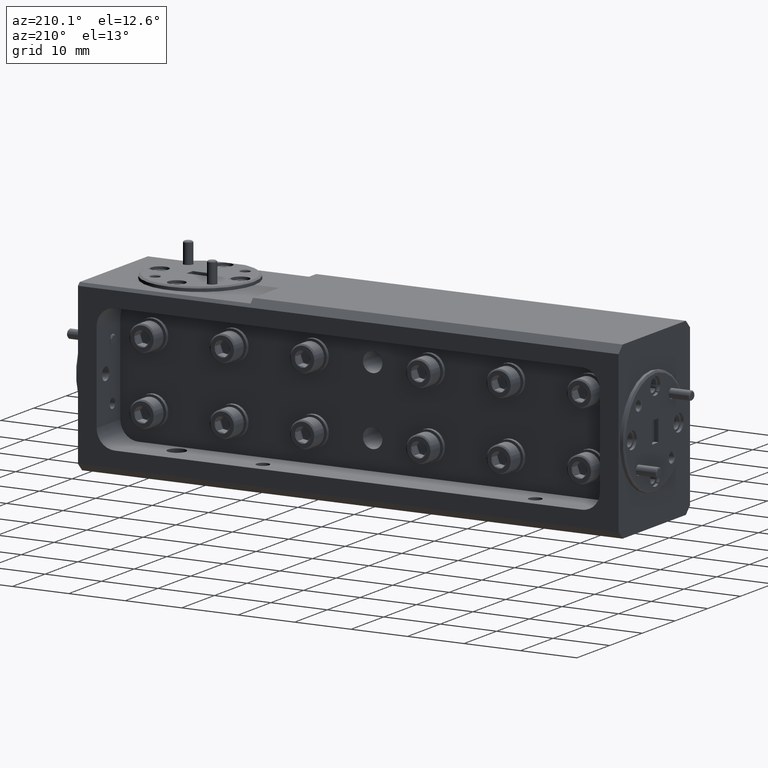
[diagram: clean part render]
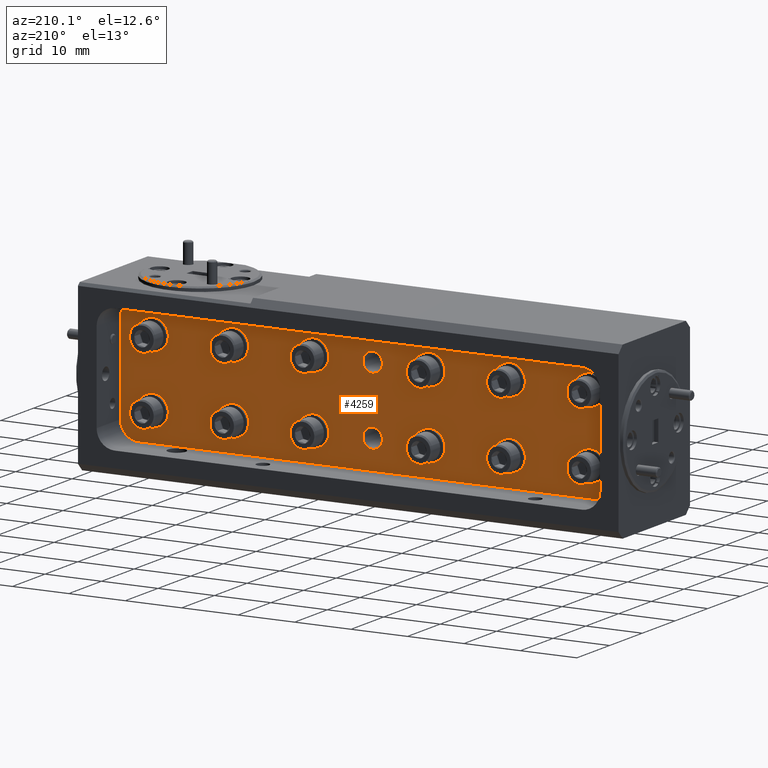
[diagram: same view with one face highlighted and labeled with its STEP entity id]
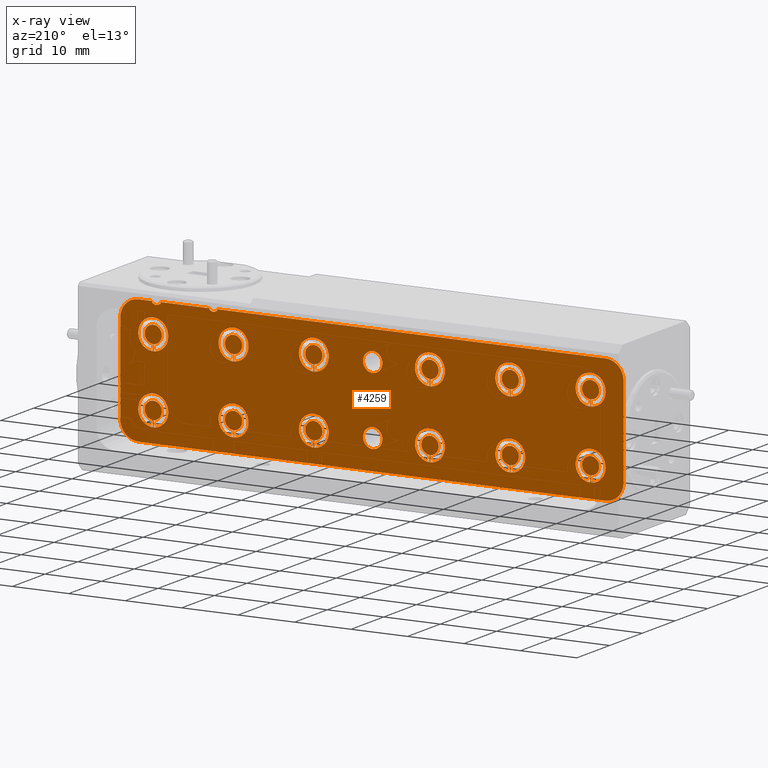
[diagram: x-ray of the same camera — body ghosted, the highlighted face saturated]
A machine part, auxiliary view. The second image highlights one B-rep face of the part: STEP entity #4259.
The next image is the same camera in x-ray: the body ghosted, the highlighted face saturated — about 0% of this face is hidden behind the body in this view.
In plain terms, the highlighted planar face has unit normal (0, -1, 0).
Its self-contained STEP definition (entity closure, byte-faithful):
#14 = CARTESIAN_POINT ( 'NONE',  ( 1.084205943633001601, 0.5750000000000000666, 0.4278289237210025631 ) ) ;
#101 = CARTESIAN_POINT ( 'NONE',  ( -0.9675000000000013589, 0.5750000000000000666, 0.1750521059585911088 ) ) ;
#147 = AXIS2_PLACEMENT_3D ( 'NONE', #12062, #19339, #18118 ) ;
#191 = EDGE_CURVE ( 'NONE', #8511, #4388, #18430, .T. ) ;
#192 = DIRECTION ( 'NONE',  ( 1.185109577205051910E-17, -0.0000000000000000000, 1.000000000000000000 ) ) ;
#209 = DIRECTION ( 'NONE',  ( 0.0000000000000000000, 0.0000000000000000000, 1.000000000000000000 ) ) ;
#244 = CIRCLE ( 'NONE', #13794, 0.06000000000000001166 ) ;
#272 = CARTESIAN_POINT ( 'NONE',  ( -0.9675000000000013589, 0.5750000000000000666, -0.2949478940414088091 ) ) ;
#323 = AXIS2_PLACEMENT_3D ( 'NONE', #12440, #10530, #19728 ) ;
#330 = VERTEX_POINT ( 'NONE', #2055 ) ;
#335 = CARTESIAN_POINT ( 'NONE',  ( 1.755000000000000782, 0.5750000000000000666, 0.3150000000000001132 ) ) ;
#362 = CARTESIAN_POINT ( 'NONE',  ( 0.9650000000000001910, 0.5750000000000000666, 0.2349999999999995426 ) ) ;
#414 = DIRECTION ( 'NONE',  ( 0.0000000000000000000, 0.0000000000000000000, -1.000000000000000000 ) ) ;
#421 = ORIENTED_EDGE ( 'NONE', *, *, #12848, .F. ) ;
#432 = DIRECTION ( 'NONE',  ( 0.0000000000000000000, 0.0000000000000000000, -1.000000000000000000 ) ) ;
#552 = CARTESIAN_POINT ( 'NONE',  ( -1.522500000000000853, 0.5750000000000000666, 0.1750521059585911088 ) ) ;
#560 = ORIENTED_EDGE ( 'NONE', *, *, #19715, .F. ) ;
#621 = EDGE_LOOP ( 'NONE', ( #3382, #1320, #560, #11404 ) ) ;
#706 = EDGE_CURVE ( 'NONE', #18896, #14304, #9422, .T. ) ;
#771 = LINE ( 'NONE', #3791, #17187 ) ;
#794 = VERTEX_POINT ( 'NONE', #13248 ) ;
#795 = LINE ( 'NONE', #13127, #19301 ) ;
#815 = EDGE_CURVE ( 'NONE', #3179, #13420, #16262, .T. ) ;
#821 = CARTESIAN_POINT ( 'NONE',  ( 1.490757015573860755, 0.5749999999999998446, 0.4215190221426816652 ) ) ;
#843 = VECTOR ( 'NONE', #3841, 39.37007874015748143 ) ;
#920 = CIRCLE ( 'NONE', #7376, 0.06000000000000001166 ) ;
#953 = DIRECTION ( 'NONE',  ( 0.0000000000000000000, 0.0000000000000000000, -1.000000000000000000 ) ) ;
#955 = EDGE_LOOP ( 'NONE', ( #1887, #7278, #8452, #4534 ) ) ;
#959 = ORIENTED_EDGE ( 'NONE', *, *, #13530, .F. ) ;
#998 = AXIS2_PLACEMENT_3D ( 'NONE', #3976, #18124, #953 ) ;
#1072 = EDGE_CURVE ( 'NONE', #19501, #1332, #9903, .T. ) ;
#1084 = EDGE_CURVE ( 'NONE', #5321, #19871, #244, .T. ) ;
#1098 = CARTESIAN_POINT ( 'NONE',  ( -0.9675000000000013589, 0.5750000000000000666, -0.2949478940414088091 ) ) ;
#1122 = CARTESIAN_POINT ( 'NONE',  ( 1.514679021007688808, 0.5750000000000000666, 0.4204882571146250081 ) ) ;
#1137 = VERTEX_POINT ( 'NONE', #10361 ) ;
#1221 = CARTESIAN_POINT ( 'NONE',  ( -1.525000000000000799, 0.5750000000000000666, 0.2350000000000000977 ) ) ;
#1298 = DIRECTION ( 'NONE',  ( -0.0000000000000000000, 1.000000000000000000, -0.0000000000000000000 ) ) ;
#1301 = CIRCLE ( 'NONE', #15815, 0.1049999999999999961 ) ;
#1311 = CARTESIAN_POINT ( 'NONE',  ( 0.4025000000000004130, 0.5750000000000000666, 0.1300297661239147307 ) ) ;
#1320 = ORIENTED_EDGE ( 'NONE', *, *, #191, .F. ) ;
#1328 = DIRECTION ( 'NONE',  ( 0.0000000000000000000, 0.0000000000000000000, -1.000000000000000000 ) ) ;
#1332 = VERTEX_POINT ( 'NONE', #7308 ) ;
#1378 = DIRECTION ( 'NONE',  ( -0.0000000000000000000, -1.000000000000000000, -0.0000000000000000000 ) ) ;
#1401 = ORIENTED_EDGE ( 'NONE', *, *, #13221, .F. ) ;
#1420 = DIRECTION ( 'NONE',  ( 1.185109577205051910E-17, 0.0000000000000000000, -1.000000000000000000 ) ) ;
#1427 = CARTESIAN_POINT ( 'NONE',  ( 0.4075000000000004174, 0.5750000000000000666, 0.1750521059585908312 ) ) ;
#1490 = LINE ( 'NONE', #13826, #16978 ) ;
#1546 = CARTESIAN_POINT ( 'NONE',  ( 0.9650000000000001910, 0.5750000000000000666, 0.2349999999999995426 ) ) ;
#1588 = VERTEX_POINT ( 'NONE', #17492 ) ;
#1605 = DIRECTION ( 'NONE',  ( -1.000000000000000000, 0.0000000000000000000, 0.0000000000000000000 ) ) ;
#1630 = CARTESIAN_POINT ( 'NONE',  ( 0.9625000000000001332, 0.5750000000000000666, -0.2949478940414088091 ) ) ;
#1636 = AXIS2_PLACEMENT_3D ( 'NONE', #12692, #11165, #11263 ) ;
#1719 = AXIS2_PLACEMENT_3D ( 'NONE', #18992, #4953, #414 ) ;
#1728 = LINE ( 'NONE', #3138, #19794 ) ;
#1796 = ORIENTED_EDGE ( 'NONE', *, *, #2665, .F. ) ;
#1809 = CARTESIAN_POINT ( 'NONE',  ( -1.525000000000000799, 0.5750000000000000666, -0.2349999999999997369 ) ) ;
#1821 = EDGE_CURVE ( 'NONE', #15996, #18572, #12834, .T. ) ;
#1847 = DIRECTION ( 'NONE',  ( 0.0000000000000000000, 1.000000000000000000, -0.0000000000000000000 ) ) ;
#1887 = ORIENTED_EDGE ( 'NONE', *, *, #15954, .F. ) ;
#1896 = EDGE_CURVE ( 'NONE', #13856, #2424, #13558, .T. ) ;
#1918 = CARTESIAN_POINT ( 'NONE',  ( 1.123955450839486447, 0.5750000000000000666, 0.4257567413884248420 ) ) ;
#1957 = EDGE_CURVE ( 'NONE', #2984, #18756, #12267, .T. ) ;
#2020 = VECTOR ( 'NONE', #16645, 39.37007874015748143 ) ;
#2055 = CARTESIAN_POINT ( 'NONE',  ( 1.522499999999999742, 0.5750000000000000666, -0.2949478940414088091 ) ) ;
#2126 = ORIENTED_EDGE ( 'NONE', *, *, #19268, .F. ) ;
#2246 = CARTESIAN_POINT ( 'NONE',  ( -0.4075000000000018607, 0.5750000000000000666, 0.1300297661239148694 ) ) ;
#2341 = CARTESIAN_POINT ( 'NONE',  ( 1.478420014538937455, 0.5750000000000002887, 0.4273916705232522206 ) ) ;
#2349 = LINE ( 'NONE', #8509, #4357 ) ;
#2355 = ORIENTED_EDGE ( 'NONE', *, *, #18395, .F. ) ;
#2377 = VERTEX_POINT ( 'NONE', #4988 ) ;
#2384 = DIRECTION ( 'NONE',  ( 1.185109577205051910E-17, 0.0000000000000000000, -1.000000000000000000 ) ) ;
#2424 = VERTEX_POINT ( 'NONE', #8032 ) ;
#2426 = EDGE_CURVE ( 'NONE', #10172, #15511, #3665, .T. ) ;
#2472 = AXIS2_PLACEMENT_3D ( 'NONE', #11140, #10846, #3064 ) ;
#2486 = LINE ( 'NONE', #16319, #6932 ) ;
#2488 = DIRECTION ( 'NONE',  ( -0.0000000000000000000, 1.000000000000000000, -0.0000000000000000000 ) ) ;
#2514 = AXIS2_PLACEMENT_3D ( 'NONE', #1546, #3058, #6192 ) ;
#2534 = CARTESIAN_POINT ( 'NONE',  ( 0.4075000000000004174, 0.5750000000000000666, -0.3399702338760849374 ) ) ;
#2541 = CARTESIAN_POINT ( 'NONE',  ( 1.529371237569454145, 0.5750000000000001776, 0.4274153816091309510 ) ) ;
#2566 = EDGE_CURVE ( 'NONE', #5945, #16008, #16299, .T. ) ;
#2574 = EDGE_CURVE ( 'NONE', #10900, #3724, #3166, .T. ) ;
#2665 = EDGE_CURVE ( 'NONE', #1588, #18896, #7724, .T. ) ;
#2728 = DIRECTION ( 'NONE',  ( 1.185109577205051910E-17, -0.0000000000000000000, 1.000000000000000000 ) ) ;
#2740 = FACE_BOUND ( 'NONE', #19853, .T. ) ;
#2757 = DIRECTION ( 'NONE',  ( 1.185109577205051910E-17, 0.0000000000000000000, -1.000000000000000000 ) ) ;
#2773 = DIRECTION ( 'NONE',  ( 1.185109577205051910E-17, -0.0000000000000000000, 1.000000000000000000 ) ) ;
#2861 = VERTEX_POINT ( 'NONE', #15877 ) ;
#2917 = CARTESIAN_POINT ( 'NONE',  ( 1.522499999999999742, 0.5750000000000000666, 0.1750521059585905537 ) ) ;
#2919 = VECTOR ( 'NONE', #10570, 39.37007874015748143 ) ;
#2921 = DIRECTION ( 'NONE',  ( 1.185109577205051910E-17, 0.0000000000000000000, -1.000000000000000000 ) ) ;
#2941 = CARTESIAN_POINT ( 'NONE',  ( 0.9625000000000001332, 0.5750000000000000666, 0.1750521059585905537 ) ) ;
#2965 = DIRECTION ( 'NONE',  ( 1.185109577205051910E-17, 0.0000000000000000000, -1.000000000000000000 ) ) ;
#2980 = CARTESIAN_POINT ( 'NONE',  ( 0.4075000000000004174, 0.5750000000000000666, 0.1750521059585908312 ) ) ;
#2984 = VERTEX_POINT ( 'NONE', #11733 ) ;
#2987 = EDGE_CURVE ( 'NONE', #15157, #13856, #16515, .T. ) ;
#3002 = AXIS2_PLACEMENT_3D ( 'NONE', #19464, #2488, #14811 ) ;
#3030 = CARTESIAN_POINT ( 'NONE',  ( 1.115379827638581345, 0.5750000000000001776, 0.4222234056381671818 ) ) ;
#3043 = VERTEX_POINT ( 'NONE', #16671 ) ;
#3058 = DIRECTION ( 'NONE',  ( 0.0000000000000000000, 1.000000000000000000, -0.0000000000000000000 ) ) ;
#3064 = DIRECTION ( 'NONE',  ( 0.0000000000000000000, 0.0000000000000000000, -1.000000000000000000 ) ) ;
#3138 = CARTESIAN_POINT ( 'NONE',  ( -0.9625000000000012434, 0.5750000000000000666, -0.2949478940414088091 ) ) ;
#3144 = FACE_BOUND ( 'NONE', #14307, .T. ) ;
#3146 = ORIENTED_EDGE ( 'NONE', *, *, #19972, .F. ) ;
#3166 = CIRCLE ( 'NONE', #4487, 0.06000000000000001166 ) ;
#3177 = VERTEX_POINT ( 'NONE', #14255 ) ;
#3179 = VERTEX_POINT ( 'NONE', #11314 ) ;
#3222 = VECTOR ( 'NONE', #10867, 39.37007874015748143 ) ;
#3233 = AXIS2_PLACEMENT_3D ( 'NONE', #12105, #1298, #10493 ) ;
#3243 = CIRCLE ( 'NONE', #14864, 0.06799999999999972733 ) ;
#3382 = ORIENTED_EDGE ( 'NONE', *, *, #6871, .F. ) ;
#3389 = VERTEX_POINT ( 'NONE', #1098 ) ;
#3403 = DIRECTION ( 'NONE',  ( 0.0000000000000000000, 1.000000000000000000, -0.0000000000000000000 ) ) ;
#3416 = DIRECTION ( 'NONE',  ( 0.0000000000000000000, 0.0000000000000000000, 1.000000000000000000 ) ) ;
#3446 = EDGE_CURVE ( 'NONE', #5669, #18464, #795, .T. ) ;
#3459 = VECTOR ( 'NONE', #10896, 39.37007874015748143 ) ;
#3482 = VECTOR ( 'NONE', #9318, 39.37007874015748143 ) ;
#3580 = EDGE_CURVE ( 'NONE', #8248, #15618, #11542, .T. ) ;
#3636 = EDGE_CURVE ( 'NONE', #18756, #19501, #13939, .T. ) ;
#3665 = LINE ( 'NONE', #12684, #17388 ) ;
#3708 = EDGE_CURVE ( 'NONE', #15371, #10172, #8051, .T. ) ;
#3724 = VERTEX_POINT ( 'NONE', #101 ) ;
#3770 = CARTESIAN_POINT ( 'NONE',  ( 0.4025000000000004685, 0.5750000000000000666, -0.2949478940414088091 ) ) ;
#3791 = CARTESIAN_POINT ( 'NONE',  ( -1.527500000000000746, 0.5750000000000000666, -0.2949478940414086980 ) ) ;
#3804 = ORIENTED_EDGE ( 'NONE', *, *, #18250, .F. ) ;
#3841 = DIRECTION ( 'NONE',  ( 1.185109577205051910E-17, 0.0000000000000000000, -1.000000000000000000 ) ) ;
#3883 = VECTOR ( 'NONE', #2921, 39.37007874015748143 ) ;
#3932 = ORIENTED_EDGE ( 'NONE', *, *, #18793, .F. ) ;
#3940 = DIRECTION ( 'NONE',  ( 0.0000000000000000000, 0.0000000000000000000, -1.000000000000000000 ) ) ;
#3942 = ORIENTED_EDGE ( 'NONE', *, *, #1957, .F. ) ;
#3952 = FACE_BOUND ( 'NONE', #13085, .T. ) ;
#3957 = CIRCLE ( 'NONE', #3002, 0.06799999999999972733 ) ;
#3976 = CARTESIAN_POINT ( 'NONE',  ( -1.630000000000000338, 0.5750000000000000666, 0.3150000000000001688 ) ) ;
#3994 = CARTESIAN_POINT ( 'NONE',  ( -1.527500000000000746, 0.5750000000000000666, -0.3399702338760847709 ) ) ;
#4068 = CIRCLE ( 'NONE', #9559, 0.1049999999999999684 ) ;
#4135 = ORIENTED_EDGE ( 'NONE', *, *, #815, .F. ) ;
#4167 = LINE ( 'NONE', #16591, #4240 ) ;
#4168 = DIRECTION ( 'NONE',  ( -0.0000000000000000000, -1.000000000000000000, -0.0000000000000000000 ) ) ;
#4199 = CIRCLE ( 'NONE', #13258, 0.1049999999999999684 ) ;
#4202 = VERTEX_POINT ( 'NONE', #13159 ) ;
#4240 = VECTOR ( 'NONE', #2757, 39.37007874015748143 ) ;
#4259 = ADVANCED_FACE ( 'NONE', ( #14972, #7290, #19320, #5466, #7088, #8698, #17795, #14873, #19427, #2740, #7193, #3952, #16278, #13967, #3144 ), #13862, .F. ) ;
#4282 = CARTESIAN_POINT ( 'NONE',  ( -0.4025000000000018563, 0.5750000000000000666, -0.2949478940414088091 ) ) ;
#4298 = LINE ( 'NONE', #15215, #2919 ) ;
#4302 = DIRECTION ( 'NONE',  ( 1.185109577205051910E-17, -0.0000000000000000000, 1.000000000000000000 ) ) ;
#4336 = VERTEX_POINT ( 'NONE', #1630 ) ;
#4342 = ORIENTED_EDGE ( 'NONE', *, *, #1896, .T. ) ;
#4357 = VECTOR ( 'NONE', #12760, 39.37007874015748143 ) ;
#4388 = VERTEX_POINT ( 'NONE', #1427 ) ;
#4423 = CARTESIAN_POINT ( 'NONE',  ( 0.4025000000000004685, 0.5750000000000000666, -0.2949478940414088091 ) ) ;
#4458 = CARTESIAN_POINT ( 'NONE',  ( -0.9625000000000012434, 0.5750000000000000666, 0.1750521059585911088 ) ) ;
#4487 = AXIS2_PLACEMENT_3D ( 'NONE', #5691, #11861, #19338 ) ;
#4534 = ORIENTED_EDGE ( 'NONE', *, *, #18090, .F. ) ;
#4545 = DIRECTION ( 'NONE',  ( 0.0000000000000000000, 1.000000000000000000, -0.0000000000000000000 ) ) ;
#4643 = CIRCLE ( 'NONE', #147, 0.06000000000000001166 ) ;
#4692 = DIRECTION ( 'NONE',  ( 0.0000000000000000000, 0.0000000000000000000, -1.000000000000000000 ) ) ;
#4703 = CARTESIAN_POINT ( 'NONE',  ( 0.9675000000000002487, 0.5750000000000000666, -0.2949478940414088091 ) ) ;
#4713 = ORIENTED_EDGE ( 'NONE', *, *, #18098, .F. ) ;
#4716 = AXIS2_PLACEMENT_3D ( 'NONE', #12189, #18344, #7642 ) ;
#4730 = DIRECTION ( 'NONE',  ( -0.0000000000000000000, -1.000000000000000000, -0.0000000000000000000 ) ) ;
#4743 = CARTESIAN_POINT ( 'NONE',  ( 1.080079012854546328, 0.5750000000000000666, 0.4299999999999999378 ) ) ;
#4780 = EDGE_CURVE ( 'NONE', #330, #11974, #10505, .T. ) ;
#4793 = CARTESIAN_POINT ( 'NONE',  ( -1.522500000000000853, 0.5750000000000000666, -0.2949478940414086980 ) ) ;
#4822 = CARTESIAN_POINT ( 'NONE',  ( 0.9675000000000002487, 0.5750000000000000666, 0.1300297661239144531 ) ) ;
#4844 = CARTESIAN_POINT ( 'NONE',  ( -0.4050000000000018030, 0.5750000000000000666, -0.2349999999999998201 ) ) ;
#4845 = CARTESIAN_POINT ( 'NONE',  ( 1.101503696203415261, 0.5750000000000001776, 0.4207479686335486302 ) ) ;
#4857 = CIRCLE ( 'NONE', #18066, 0.1250000000000000278 ) ;
#4933 = LINE ( 'NONE', #12412, #3459 ) ;
#4953 = DIRECTION ( 'NONE',  ( 0.0000000000000000000, 1.000000000000000000, -0.0000000000000000000 ) ) ;
#4988 = CARTESIAN_POINT ( 'NONE',  ( 1.080079012854546328, 0.5750000000000000666, 0.4299999999999999378 ) ) ;
#5039 = CARTESIAN_POINT ( 'NONE',  ( 0.4025000000000004685, 0.5750000000000000666, 0.1750521059585908312 ) ) ;
#5068 = DIRECTION ( 'NONE',  ( 0.0000000000000000000, 0.0000000000000000000, -1.000000000000000000 ) ) ;
#5101 = ORIENTED_EDGE ( 'NONE', *, *, #16370, .F. ) ;
#5213 = ORIENTED_EDGE ( 'NONE', *, *, #12200, .T. ) ;
#5277 = AXIS2_PLACEMENT_3D ( 'NONE', #16526, #1378, #13704 ) ;
#5286 = CARTESIAN_POINT ( 'NONE',  ( 1.522499999999999742, 0.5750000000000000666, -0.3399702338760849374 ) ) ;
#5305 = CARTESIAN_POINT ( 'NONE',  ( -0.4075000000000018607, 0.5750000000000000666, -0.3399702338760849374 ) ) ;
#5321 = VERTEX_POINT ( 'NONE', #4793 ) ;
#5351 = EDGE_CURVE ( 'NONE', #19028, #2861, #19371, .T. ) ;
#5353 = CIRCLE ( 'NONE', #6965, 0.06000000000000001166 ) ;
#5378 = CARTESIAN_POINT ( 'NONE',  ( 0.4050000000000004707, 0.5750000000000000666, 0.2349999999999998201 ) ) ;
#5466 = FACE_BOUND ( 'NONE', #621, .T. ) ;
#5499 = EDGE_CURVE ( 'NONE', #5581, #10720, #1301, .T. ) ;
#5581 = VERTEX_POINT ( 'NONE', #7488 ) ;
#5631 = LINE ( 'NONE', #4423, #2020 ) ;
#5657 = LINE ( 'NONE', #2941, #19739 ) ;
#5669 = VERTEX_POINT ( 'NONE', #2534 ) ;
#5682 = ORIENTED_EDGE ( 'NONE', *, *, #8253, .T. ) ;
#5691 = CARTESIAN_POINT ( 'NONE',  ( -0.9650000000000013012, 0.5750000000000000666, 0.2350000000000000977 ) ) ;
#5777 = EDGE_CURVE ( 'NONE', #2377, #15592, #11893, .T. ) ;
#5862 = VERTEX_POINT ( 'NONE', #8562 ) ;
#5945 = VERTEX_POINT ( 'NONE', #5039 ) ;
#5985 = CARTESIAN_POINT ( 'NONE',  ( -0.4075000000000018052, 0.5750000000000000666, 0.1750521059585909700 ) ) ;
#6016 = ORIENTED_EDGE ( 'NONE', *, *, #3446, .F. ) ;
#6047 = EDGE_CURVE ( 'NONE', #15592, #6612, #8969, .T. ) ;
#6064 = CARTESIAN_POINT ( 'NONE',  ( 1.534133398614354382, 0.5750000000000000666, 0.5999999999999998668 ) ) ;
#6075 = CARTESIAN_POINT ( 'NONE',  ( 1.522499999999999742, 0.5750000000000000666, 0.1750521059585905537 ) ) ;
#6094 = DIRECTION ( 'NONE',  ( 0.0000000000000000000, 0.0000000000000000000, -1.000000000000000000 ) ) ;
#6168 = VERTEX_POINT ( 'NONE', #10988 ) ;
#6180 = EDGE_CURVE ( 'NONE', #10051, #15157, #1490, .T. ) ;
#6192 = DIRECTION ( 'NONE',  ( 0.0000000000000000000, 0.0000000000000000000, -1.000000000000000000 ) ) ;
#6346 = CARTESIAN_POINT ( 'NONE',  ( 1.755000000000000782, 0.5750000000000000666, 0.4400000000000001688 ) ) ;
#6369 = CIRCLE ( 'NONE', #9587, 0.06000000000000001166 ) ;
#6379 = LINE ( 'NONE', #7705, #3482 ) ;
#6434 = DIRECTION ( 'NONE',  ( -1.000000000000000000, 0.0000000000000000000, 0.0000000000000000000 ) ) ;
#6455 = AXIS2_PLACEMENT_3D ( 'NONE', #13610, #17117, #4692 ) ;
#6457 = CARTESIAN_POINT ( 'NONE',  ( 1.096991888692361528, 0.5750000000000000666, 0.4221809936533471030 ) ) ;
#6612 = VERTEX_POINT ( 'NONE', #16822 ) ;
#6682 = DIRECTION ( 'NONE',  ( -1.000000000000000000, 0.0000000000000000000, 0.0000000000000000000 ) ) ;
#6760 = DIRECTION ( 'NONE',  ( -0.0000000000000000000, 1.000000000000000000, -0.0000000000000000000 ) ) ;
#6845 = VERTEX_POINT ( 'NONE', #14895 ) ;
#6871 = EDGE_CURVE ( 'NONE', #4388, #5945, #6369, .T. ) ;
#6879 = CARTESIAN_POINT ( 'NONE',  ( -1.527500000000000746, 0.5750000000000000666, 0.1750521059585911088 ) ) ;
#6930 = CIRCLE ( 'NONE', #4716, 0.06000000000000001166 ) ;
#6932 = VECTOR ( 'NONE', #12182, 39.37007874015748143 ) ;
#6965 = AXIS2_PLACEMENT_3D ( 'NONE', #9085, #4730, #18474 ) ;
#6987 = CARTESIAN_POINT ( 'NONE',  ( -1.522500000000000853, 0.5750000000000000666, -0.3399702338760847709 ) ) ;
#7052 = ORIENTED_EDGE ( 'NONE', *, *, #706, .F. ) ;
#7088 = FACE_BOUND ( 'NONE', #16385, .T. ) ;
#7089 = CARTESIAN_POINT ( 'NONE',  ( -0.4025000000000018563, 0.5750000000000000666, 0.1750521059585909700 ) ) ;
#7162 = CARTESIAN_POINT ( 'NONE',  ( -0.4025000000000018563, 0.5750000000000000666, 0.1300297661239148694 ) ) ;
#7185 = CARTESIAN_POINT ( 'NONE',  ( 0.4075000000000004174, 0.5750000000000000666, -0.2949478940414088091 ) ) ;
#7193 = FACE_BOUND ( 'NONE', #955, .T. ) ;
#7204 = VERTEX_POINT ( 'NONE', #13358 ) ;
#7278 = ORIENTED_EDGE ( 'NONE', *, *, #2426, .F. ) ;
#7285 = CARTESIAN_POINT ( 'NONE',  ( 1.534133398614354382, 0.5750000000000000666, 0.4299999999999997713 ) ) ;
#7290 = FACE_BOUND ( 'NONE', #8784, .T. ) ;
#7291 = CARTESIAN_POINT ( 'NONE',  ( 1.630000000000001004, 0.5750000000000000666, 0.4400000000000001688 ) ) ;
#7308 = CARTESIAN_POINT ( 'NONE',  ( -1.527500000000000746, 0.5750000000000000666, 0.1750521059585911088 ) ) ;
#7344 = VERTEX_POINT ( 'NONE', #18466 ) ;
#7366 = DIRECTION ( 'NONE',  ( -0.0000000000000000000, -1.000000000000000000, -0.0000000000000000000 ) ) ;
#7376 = AXIS2_PLACEMENT_3D ( 'NONE', #4844, #15560, #209 ) ;
#7409 = DIRECTION ( 'NONE',  ( -0.0000000000000000000, -1.000000000000000000, -0.0000000000000000000 ) ) ;
#7421 = CARTESIAN_POINT ( 'NONE',  ( 1.080079012854546328, 0.5750000000000000666, 0.5999999999999998668 ) ) ;
#7488 = CARTESIAN_POINT ( 'NONE',  ( 1.522499999999999742, 0.5750000000000000666, 0.1300297661239144531 ) ) ;
#7642 = DIRECTION ( 'NONE',  ( 0.0000000000000000000, 0.0000000000000000000, 1.000000000000000000 ) ) ;
#7689 = CARTESIAN_POINT ( 'NONE',  ( -0.9650000000000013012, 0.5750000000000000666, 0.2350000000000000977 ) ) ;
#7691 = DIRECTION ( 'NONE',  ( 0.0000000000000000000, 0.0000000000000000000, -1.000000000000000000 ) ) ;
#7705 = CARTESIAN_POINT ( 'NONE',  ( 1.527499999999999858, 0.5750000000000000666, -0.2949478940414088091 ) ) ;
#7715 = CARTESIAN_POINT ( 'NONE',  ( 1.527499999999999858, 0.5750000000000000666, 0.1750521059585905537 ) ) ;
#7724 = CIRCLE ( 'NONE', #2514, 0.1049999999999999961 ) ;
#7749 = ORIENTED_EDGE ( 'NONE', *, *, #19735, .F. ) ;
#7803 = VECTOR ( 'NONE', #2965, 39.37007874015748143 ) ;
#7805 = CARTESIAN_POINT ( 'NONE',  ( 1.132173422728021128, 0.5750000000000000666, 0.4299999999999999378 ) ) ;
#7855 = VERTEX_POINT ( 'NONE', #3770 ) ;
#7866 = EDGE_LOOP ( 'NONE', ( #14799, #2126 ) ) ;
#7912 = EDGE_CURVE ( 'NONE', #14304, #3177, #16490, .T. ) ;
#8012 = DIRECTION ( 'NONE',  ( -0.0000000000000000000, 1.000000000000000000, -0.0000000000000000000 ) ) ;
#8032 = CARTESIAN_POINT ( 'NONE',  ( 1.534133398614354382, 0.5750000000000000666, 0.4400000000000001688 ) ) ;
#8034 = VERTEX_POINT ( 'NONE', #4282 ) ;
#8051 = CIRCLE ( 'NONE', #14236, 0.1049999999999999961 ) ;
#8085 = CARTESIAN_POINT ( 'NONE',  ( 0.4050000000000004707, 0.5750000000000000666, -0.2349999999999998201 ) ) ;
#8101 = DIRECTION ( 'NONE',  ( 1.185109577205051910E-17, -0.0000000000000000000, 1.000000000000000000 ) ) ;
#8115 = CARTESIAN_POINT ( 'NONE',  ( -0.4050000000000018030, 0.5750000000000000666, -0.2349999999999998201 ) ) ;
#8164 = CARTESIAN_POINT ( 'NONE',  ( -0.4050000000000018030, 0.5750000000000000666, 0.2349999999999999589 ) ) ;
#8248 = VERTEX_POINT ( 'NONE', #7715 ) ;
#8253 = EDGE_CURVE ( 'NONE', #16745, #7344, #4857, .T. ) ;
#8269 = EDGE_CURVE ( 'NONE', #10434, #4202, #4199, .T. ) ;
#8281 = CARTESIAN_POINT ( 'NONE',  ( -1.527500000000000746, 0.5750000000000000666, -0.2949478940414086980 ) ) ;
#8296 = VERTEX_POINT ( 'NONE', #335 ) ;
#8318 = EDGE_CURVE ( 'NONE', #17029, #1137, #3243, .T. ) ;
#8319 = EDGE_LOOP ( 'NONE', ( #12448, #6016, #8363, #3932 ) ) ;
#8363 = ORIENTED_EDGE ( 'NONE', *, *, #9889, .F. ) ;
#8395 = EDGE_CURVE ( 'NONE', #10051, #6612, #8404, .T. ) ;
#8404 = LINE ( 'NONE', #14369, #11320 ) ;
#8422 = VECTOR ( 'NONE', #15133, 39.37007874015748143 ) ;
#8452 = ORIENTED_EDGE ( 'NONE', *, *, #3708, .F. ) ;
#8474 = ORIENTED_EDGE ( 'NONE', *, *, #3580, .F. ) ;
#8509 = CARTESIAN_POINT ( 'NONE',  ( 0.9625000000000001332, 0.5750000000000000666, -0.2949478940414088091 ) ) ;
#8511 = VERTEX_POINT ( 'NONE', #10217 ) ;
#8562 = CARTESIAN_POINT ( 'NONE',  ( -0.9625000000000012434, 0.5750000000000000666, -0.2949478940414088091 ) ) ;
#8582 = VECTOR ( 'NONE', #6094, 39.37007874015748143 ) ;
#8586 = DIRECTION ( 'NONE',  ( -0.0000000000000000000, -0.0000000000000000000, -1.000000000000000000 ) ) ;
#8597 = CARTESIAN_POINT ( 'NONE',  ( 1.524582661297355646, 0.5750000000000002887, 0.4248845874221288121 ) ) ;
#8645 = LINE ( 'NONE', #12084, #10748 ) ;
#8656 = LINE ( 'NONE', #7421, #8582 ) ;
#8698 = FACE_BOUND ( 'NONE', #17554, .T. ) ;
#8784 = EDGE_LOOP ( 'NONE', ( #959, #10638, #18002, #12943 ) ) ;
#8799 = CARTESIAN_POINT ( 'NONE',  ( 1.501277279096165262, 0.5750000000000000666, 0.4184938026879925221 ) ) ;
#8852 = VERTEX_POINT ( 'NONE', #13129 ) ;
#8958 = ORIENTED_EDGE ( 'NONE', *, *, #11433, .F. ) ;
#8959 = ORIENTED_EDGE ( 'NONE', *, *, #16236, .T. ) ;
#8967 = VECTOR ( 'NONE', #192, 39.37007874015748143 ) ;
#8969 = LINE ( 'NONE', #15033, #8422 ) ;
#8977 = ORIENTED_EDGE ( 'NONE', *, *, #8269, .F. ) ;
#9044 = CIRCLE ( 'NONE', #3233, 0.1250000000000000278 ) ;
#9083 = AXIS2_PLACEMENT_3D ( 'NONE', #362, #19143, #19240 ) ;
#9085 = CARTESIAN_POINT ( 'NONE',  ( -0.4050000000000018030, 0.5750000000000000666, 0.2349999999999999589 ) ) ;
#9089 = CIRCLE ( 'NONE', #10377, 0.06000000000000001166 ) ;
#9214 = LINE ( 'NONE', #5985, #7803 ) ;
#9217 = DIRECTION ( 'NONE',  ( 0.0000000000000000000, 1.000000000000000000, -0.0000000000000000000 ) ) ;
#9294 = CARTESIAN_POINT ( 'NONE',  ( 1.527499999999999858, 0.5750000000000000666, 0.1750521059585905537 ) ) ;
#9318 = DIRECTION ( 'NONE',  ( 1.185109577205051910E-17, -0.0000000000000000000, 1.000000000000000000 ) ) ;
#9422 = LINE ( 'NONE', #12445, #15077 ) ;
#9429 = CARTESIAN_POINT ( 'NONE',  ( -0.9650000000000013012, 0.5750000000000000666, -0.2349999999999998201 ) ) ;
#9486 = EDGE_CURVE ( 'NONE', #8852, #14601, #4068, .T. ) ;
#9493 = DIRECTION ( 'NONE',  ( 1.185109577205051910E-17, -0.0000000000000000000, 1.000000000000000000 ) ) ;
#9519 = LINE ( 'NONE', #6879, #843 ) ;
#9556 = EDGE_CURVE ( 'NONE', #1332, #2984, #9519, .T. ) ;
#9559 = AXIS2_PLACEMENT_3D ( 'NONE', #9429, #9217, #432 ) ;
#9587 = AXIS2_PLACEMENT_3D ( 'NONE', #5378, #4168, #16398 ) ;
#9675 = ORIENTED_EDGE ( 'NONE', *, *, #7912, .F. ) ;
#9704 = CARTESIAN_POINT ( 'NONE',  ( -0.005000000000000629809, 0.5750000000000002887, -0.2349999999999998757 ) ) ;
#9805 = ORIENTED_EDGE ( 'NONE', *, *, #10700, .F. ) ;
#9813 = DIRECTION ( 'NONE',  ( 0.0000000000000000000, 0.0000000000000000000, -1.000000000000000000 ) ) ;
#9865 = CIRCLE ( 'NONE', #12767, 0.1250000000000000000 ) ;
#9889 = EDGE_CURVE ( 'NONE', #6168, #5669, #15016, .T. ) ;
#9903 = CIRCLE ( 'NONE', #11207, 0.06000000000000001166 ) ;
#9933 = AXIS2_PLACEMENT_3D ( 'NONE', #15040, #7366, #13538 ) ;
#10051 = VERTEX_POINT ( 'NONE', #15855 ) ;
#10172 = VERTEX_POINT ( 'NONE', #7162 ) ;
#10217 = CARTESIAN_POINT ( 'NONE',  ( 0.4075000000000004174, 0.5750000000000000666, 0.1300297661239147307 ) ) ;
#10231 = CIRCLE ( 'NONE', #16688, 0.06799999999999972733 ) ;
#10361 = CARTESIAN_POINT ( 'NONE',  ( -0.005000000000000629809, 0.5750000000000002887, 0.3029999999999996030 ) ) ;
#10377 = AXIS2_PLACEMENT_3D ( 'NONE', #19929, #7409, #18205 ) ;
#10434 = VERTEX_POINT ( 'NONE', #5305 ) ;
#10440 = CARTESIAN_POINT ( 'NONE',  ( 1.755000000000000782, 0.5750000000000000666, -0.3150000000000001688 ) ) ;
#10493 = DIRECTION ( 'NONE',  ( 0.0000000000000000000, 0.0000000000000000000, -1.000000000000000000 ) ) ;
#10505 = LINE ( 'NONE', #16754, #3883 ) ;
#10519 = CARTESIAN_POINT ( 'NONE',  ( -0.4025000000000018563, 0.5750000000000000666, -0.2949478940414088091 ) ) ;
#10522 = DIRECTION ( 'NONE',  ( -0.0000000000000000000, -0.0000000000000000000, 1.000000000000000000 ) ) ;
#10530 = DIRECTION ( 'NONE',  ( 0.0000000000000000000, -1.000000000000000000, 0.0000000000000000000 ) ) ;
#10533 = VERTEX_POINT ( 'NONE', #3994 ) ;
#10570 = DIRECTION ( 'NONE',  ( 0.0000000000000000000, 0.0000000000000000000, 1.000000000000000000 ) ) ;
#10574 = ORIENTED_EDGE ( 'NONE', *, *, #9486, .F. ) ;
#10611 = CIRCLE ( 'NONE', #14164, 0.1049999999999999684 ) ;
#10638 = ORIENTED_EDGE ( 'NONE', *, *, #14894, .F. ) ;
#10700 = EDGE_CURVE ( 'NONE', #5862, #3389, #6930, .T. ) ;
#10718 = DIRECTION ( 'NONE',  ( 0.0000000000000000000, 0.0000000000000000000, -1.000000000000000000 ) ) ;
#10720 = VERTEX_POINT ( 'NONE', #15517 ) ;
#10748 = VECTOR ( 'NONE', #4302, 39.37007874015748143 ) ;
#10785 = LINE ( 'NONE', #18663, #19519 ) ;
#10807 = CARTESIAN_POINT ( 'NONE',  ( 1.132173422728021128, 0.5750000000000000666, 0.4299999999999999378 ) ) ;
#10841 = DIRECTION ( 'NONE',  ( -0.0000000000000000000, 1.000000000000000000, -0.0000000000000000000 ) ) ;
#10846 = DIRECTION ( 'NONE',  ( -0.0000000000000000000, 1.000000000000000000, -0.0000000000000000000 ) ) ;
#10867 = DIRECTION ( 'NONE',  ( 1.185109577205051910E-17, -0.0000000000000000000, 1.000000000000000000 ) ) ;
#10896 = DIRECTION ( 'NONE',  ( 1.185109577205051910E-17, -0.0000000000000000000, 1.000000000000000000 ) ) ;
#10900 = VERTEX_POINT ( 'NONE', #4458 ) ;
#10916 = CARTESIAN_POINT ( 'NONE',  ( -0.9625000000000012434, 0.5750000000000000666, 0.1300297661239150082 ) ) ;
#10926 = VECTOR ( 'NONE', #9493, 39.37007874015748143 ) ;
#10987 = CARTESIAN_POINT ( 'NONE',  ( -0.4075000000000018052, 0.5750000000000000666, -0.2949478940414088091 ) ) ;
#10988 = CARTESIAN_POINT ( 'NONE',  ( 0.4025000000000004130, 0.5750000000000000666, -0.3399702338760849374 ) ) ;
#11027 = DIRECTION ( 'NONE',  ( 1.185109577205051910E-17, -0.0000000000000000000, 1.000000000000000000 ) ) ;
#11054 = EDGE_CURVE ( 'NONE', #18750, #3043, #10231, .T. ) ;
#11140 = CARTESIAN_POINT ( 'NONE',  ( -0.005000000000000629809, 0.5750000000000002887, 0.2349999999999998757 ) ) ;
#11165 = DIRECTION ( 'NONE',  ( 0.0000000000000000000, 1.000000000000000000, -0.0000000000000000000 ) ) ;
#11181 = CIRCLE ( 'NONE', #2472, 0.06799999999999972733 ) ;
#11203 = CARTESIAN_POINT ( 'NONE',  ( -1.525000000000000799, 0.5750000000000000666, 0.2350000000000000977 ) ) ;
#11207 = AXIS2_PLACEMENT_3D ( 'NONE', #11203, #12634, #17257 ) ;
#11263 = DIRECTION ( 'NONE',  ( 0.0000000000000000000, 0.0000000000000000000, -1.000000000000000000 ) ) ;
#11314 = CARTESIAN_POINT ( 'NONE',  ( -1.755000000000000560, 0.5750000000000000666, 0.3150000000000001132 ) ) ;
#11320 = VECTOR ( 'NONE', #6682, 39.37007874015748143 ) ;
#11396 = ORIENTED_EDGE ( 'NONE', *, *, #3636, .F. ) ;
#11404 = ORIENTED_EDGE ( 'NONE', *, *, #2566, .F. ) ;
#11433 = EDGE_CURVE ( 'NONE', #18572, #10900, #4933, .T. ) ;
#11469 = CARTESIAN_POINT ( 'NONE',  ( -1.755000000000000560, 0.5750000000000000666, -0.3150000000000001688 ) ) ;
#11508 = VECTOR ( 'NONE', #13712, 39.37007874015748143 ) ;
#11542 = CIRCLE ( 'NONE', #9933, 0.06000000000000001166 ) ;
#11591 = EDGE_LOOP ( 'NONE', ( #12886, #11700, #421, #5682, #15173, #15278, #4135, #5213, #1401, #8959, #12770, #17976, #14646, #13220, #19249, #4342 ) ) ;
#11636 = CARTESIAN_POINT ( 'NONE',  ( 0.9675000000000002487, 0.5750000000000000666, 0.1750521059585905537 ) ) ;
#11700 = ORIENTED_EDGE ( 'NONE', *, *, #15681, .T. ) ;
#11730 = DIRECTION ( 'NONE',  ( 1.185109577205051910E-17, 0.0000000000000000000, -1.000000000000000000 ) ) ;
#11733 = CARTESIAN_POINT ( 'NONE',  ( -1.527500000000000746, 0.5750000000000000666, 0.1300297661239150082 ) ) ;
#11758 = CARTESIAN_POINT ( 'NONE',  ( 1.534133398614354382, 0.5750000000000000666, 0.4299999999999997713 ) ) ;
#11823 = EDGE_CURVE ( 'NONE', #3389, #8852, #12190, .T. ) ;
#11824 = CARTESIAN_POINT ( 'NONE',  ( 1.527499999999999858, 0.5750000000000000666, -0.2949478940414088091 ) ) ;
#11861 = DIRECTION ( 'NONE',  ( -0.0000000000000000000, -1.000000000000000000, -0.0000000000000000000 ) ) ;
#11866 = AXIS2_PLACEMENT_3D ( 'NONE', #7689, #16870, #18282 ) ;
#11893 = B_SPLINE_CURVE_WITH_KNOTS ( 'NONE', 3,
 ( #4743, #14, #17173, #6457, #4845, #12639, #3030, #1918, #15350, #10807 ),
 .UNSPECIFIED., .F., .F.,
 ( 4, 2, 2, 2, 4 ),
 ( 0.003759186431509194560, 0.004114151791802043122, 0.004469117152094892118, 0.004824082512387741113, 0.005179047872680590109 ),
 .UNSPECIFIED. ) ;
#11974 = VERTEX_POINT ( 'NONE', #5286 ) ;
#11979 = ORIENTED_EDGE ( 'NONE', *, *, #11823, .F. ) ;
#12049 = EDGE_CURVE ( 'NONE', #10533, #15297, #18417, .T. ) ;
#12062 = CARTESIAN_POINT ( 'NONE',  ( 1.524999999999999689, 0.5750000000000000666, -0.2349999999999998201 ) ) ;
#12084 = CARTESIAN_POINT ( 'NONE',  ( -1.522500000000000853, 0.5750000000000000666, -0.2949478940414086980 ) ) ;
#12105 = CARTESIAN_POINT ( 'NONE',  ( -1.630000000000000560, 0.5750000000000000666, -0.3150000000000001688 ) ) ;
#12182 = DIRECTION ( 'NONE',  ( 1.000000000000000000, -0.0000000000000000000, -0.0000000000000000000 ) ) ;
#12189 = CARTESIAN_POINT ( 'NONE',  ( -0.9650000000000013012, 0.5750000000000000666, -0.2349999999999998201 ) ) ;
#12190 = LINE ( 'NONE', #272, #11508 ) ;
#12200 = EDGE_CURVE ( 'NONE', #3179, #17402, #19389, .T. ) ;
#12267 = CIRCLE ( 'NONE', #16460, 0.1049999999999999961 ) ;
#12412 = CARTESIAN_POINT ( 'NONE',  ( -0.9625000000000012434, 0.5750000000000000666, 0.1750521059585911088 ) ) ;
#12440 = CARTESIAN_POINT ( 'NONE',  ( 0.0000000000000000000, 0.5750000000000000666, 0.0000000000000000000 ) ) ;
#12445 = CARTESIAN_POINT ( 'NONE',  ( 0.9675000000000002487, 0.5750000000000000666, 0.1750521059585905537 ) ) ;
#12448 = ORIENTED_EDGE ( 'NONE', *, *, #18123, .F. ) ;
#12536 = LINE ( 'NONE', #9294, #10926 ) ;
#12557 = LINE ( 'NONE', #17192, #13929 ) ;
#12611 = VECTOR ( 'NONE', #10522, 39.37007874015748143 ) ;
#12634 = DIRECTION ( 'NONE',  ( -0.0000000000000000000, -1.000000000000000000, -0.0000000000000000000 ) ) ;
#12639 = CARTESIAN_POINT ( 'NONE',  ( 1.110883018127134747, 0.5750000000000000666, 0.4207742923178038885 ) ) ;
#12662 = EDGE_CURVE ( 'NONE', #15503, #2424, #15447, .T. ) ;
#12670 = CARTESIAN_POINT ( 'NONE',  ( 1.473614165803078357, 0.5750000000000000666, 0.4299999999999997713 ) ) ;
#12684 = CARTESIAN_POINT ( 'NONE',  ( -0.4025000000000018563, 0.5750000000000000666, 0.1750521059585909700 ) ) ;
#12692 = CARTESIAN_POINT ( 'NONE',  ( -1.525000000000000799, 0.5750000000000000666, -0.2349999999999997369 ) ) ;
#12713 = DIRECTION ( 'NONE',  ( 0.0000000000000000000, 0.0000000000000000000, -1.000000000000000000 ) ) ;
#12760 = DIRECTION ( 'NONE',  ( 1.185109577205051910E-17, 0.0000000000000000000, -1.000000000000000000 ) ) ;
#12767 = AXIS2_PLACEMENT_3D ( 'NONE', #13037, #6760, #19190 ) ;
#12770 = ORIENTED_EDGE ( 'NONE', *, *, #5777, .T. ) ;
#12788 = ORIENTED_EDGE ( 'NONE', *, *, #1084, .F. ) ;
#12834 = CIRCLE ( 'NONE', #11866, 0.1049999999999999961 ) ;
#12846 = VECTOR ( 'NONE', #16202, 39.37007874015748143 ) ;
#12848 = EDGE_CURVE ( 'NONE', #16745, #8296, #4298, .T. ) ;
#12886 = ORIENTED_EDGE ( 'NONE', *, *, #12662, .F. ) ;
#12943 = ORIENTED_EDGE ( 'NONE', *, *, #16585, .F. ) ;
#13037 = CARTESIAN_POINT ( 'NONE',  ( 1.630000000000001004, 0.5750000000000000666, 0.3150000000000001132 ) ) ;
#13043 = DIRECTION ( 'NONE',  ( 0.0000000000000000000, 1.000000000000000000, -0.0000000000000000000 ) ) ;
#13083 = EDGE_CURVE ( 'NONE', #6845, #13420, #9044, .T. ) ;
#13085 = EDGE_LOOP ( 'NONE', ( #9675, #7052, #1796, #2355 ) ) ;
#13116 = ORIENTED_EDGE ( 'NONE', *, *, #8318, .F. ) ;
#13127 = CARTESIAN_POINT ( 'NONE',  ( 0.4075000000000004174, 0.5750000000000000666, -0.2949478940414088091 ) ) ;
#13129 = CARTESIAN_POINT ( 'NONE',  ( -0.9675000000000013589, 0.5750000000000000666, -0.3399702338760849374 ) ) ;
#13154 = CARTESIAN_POINT ( 'NONE',  ( 1.473614165803078357, 0.5750000000000000666, 0.4299999999999997713 ) ) ;
#13159 = CARTESIAN_POINT ( 'NONE',  ( -0.4025000000000018563, 0.5750000000000000666, -0.3399702338760849374 ) ) ;
#13193 = ORIENTED_EDGE ( 'NONE', *, *, #16928, .F. ) ;
#13220 = ORIENTED_EDGE ( 'NONE', *, *, #6180, .T. ) ;
#13221 = EDGE_CURVE ( 'NONE', #794, #17402, #10785, .T. ) ;
#13248 = CARTESIAN_POINT ( 'NONE',  ( 1.080079012854546328, 0.5750000000000000666, 0.4400000000000001688 ) ) ;
#13258 = AXIS2_PLACEMENT_3D ( 'NONE', #8115, #1847, #5068 ) ;
#13358 = CARTESIAN_POINT ( 'NONE',  ( -0.4075000000000018052, 0.5750000000000000666, 0.1750521059585909700 ) ) ;
#13420 = VERTEX_POINT ( 'NONE', #11469 ) ;
#13472 = VECTOR ( 'NONE', #8586, 39.37007874015748143 ) ;
#13484 = EDGE_CURVE ( 'NONE', #6845, #7344, #2486, .T. ) ;
#13530 = EDGE_CURVE ( 'NONE', #19367, #4336, #17230, .T. ) ;
#13538 = DIRECTION ( 'NONE',  ( 0.0000000000000000000, 0.0000000000000000000, 1.000000000000000000 ) ) ;
#13558 = LINE ( 'NONE', #6064, #12611 ) ;
#13610 = CARTESIAN_POINT ( 'NONE',  ( 0.9650000000000001910, 0.5750000000000000666, -0.2349999999999998201 ) ) ;
#13682 = VECTOR ( 'NONE', #16554, 39.37007874015748143 ) ;
#13704 = DIRECTION ( 'NONE',  ( 0.0000000000000000000, 0.0000000000000000000, 1.000000000000000000 ) ) ;
#13712 = DIRECTION ( 'NONE',  ( 1.185109577205051910E-17, 0.0000000000000000000, -1.000000000000000000 ) ) ;
#13794 = AXIS2_PLACEMENT_3D ( 'NONE', #1809, #15558, #3416 ) ;
#13819 = ORIENTED_EDGE ( 'NONE', *, *, #17405, .F. ) ;
#13826 = CARTESIAN_POINT ( 'NONE',  ( 1.473614165803078357, 0.5750000000000000666, 0.5999999999999998668 ) ) ;
#13849 = EDGE_CURVE ( 'NONE', #17252, #330, #4643, .T. ) ;
#13856 = VERTEX_POINT ( 'NONE', #11758 ) ;
#13862 = PLANE ( 'NONE',  #323 ) ;
#13880 = CARTESIAN_POINT ( 'NONE',  ( 1.630000000000001004, 0.5750000000000000666, -0.3150000000000001688 ) ) ;
#13929 = VECTOR ( 'NONE', #11730, 39.37007874015748143 ) ;
#13939 = LINE ( 'NONE', #14233, #8967 ) ;
#13967 = FACE_BOUND ( 'NONE', #8319, .T. ) ;
#14164 = AXIS2_PLACEMENT_3D ( 'NONE', #18379, #4545, #10718 ) ;
#14233 = CARTESIAN_POINT ( 'NONE',  ( -1.522500000000000853, 0.5750000000000000666, 0.1750521059585911088 ) ) ;
#14236 = AXIS2_PLACEMENT_3D ( 'NONE', #8164, #3403, #12713 ) ;
#14255 = CARTESIAN_POINT ( 'NONE',  ( 0.9625000000000001332, 0.5750000000000000666, 0.1750521059585905537 ) ) ;
#14259 = DIRECTION ( 'NONE',  ( 0.0000000000000000000, 0.0000000000000000000, -1.000000000000000000 ) ) ;
#14304 = VERTEX_POINT ( 'NONE', #11636 ) ;
#14307 = EDGE_LOOP ( 'NONE', ( #9805, #7749, #10574, #11979 ) ) ;
#14309 = CIRCLE ( 'NONE', #1719, 0.1049999999999999961 ) ;
#14369 = CARTESIAN_POINT ( 'NONE',  ( 1.755000000000000782, 0.5750000000000000666, 0.4400000000000001688 ) ) ;
#14559 = VECTOR ( 'NONE', #2773, 39.37007874015748143 ) ;
#14601 = VERTEX_POINT ( 'NONE', #19263 ) ;
#14646 = ORIENTED_EDGE ( 'NONE', *, *, #8395, .F. ) ;
#14661 = CARTESIAN_POINT ( 'NONE',  ( 1.509444758705639211, 0.5750000000000000666, 0.4185368167488403013 ) ) ;
#14671 = ORIENTED_EDGE ( 'NONE', *, *, #17283, .F. ) ;
#14711 = CARTESIAN_POINT ( 'NONE',  ( 0.9625000000000001332, 0.5750000000000000666, -0.3399702338760849374 ) ) ;
#14753 = CARTESIAN_POINT ( 'NONE',  ( -1.755000000000000560, 0.5750000000000000666, -0.4400000000000001688 ) ) ;
#14785 = ORIENTED_EDGE ( 'NONE', *, *, #19105, .F. ) ;
#14799 = ORIENTED_EDGE ( 'NONE', *, *, #11054, .F. ) ;
#14811 = DIRECTION ( 'NONE',  ( 0.0000000000000000000, 0.0000000000000000000, -1.000000000000000000 ) ) ;
#14864 = AXIS2_PLACEMENT_3D ( 'NONE', #15686, #8012, #9813 ) ;
#14867 = CARTESIAN_POINT ( 'NONE',  ( 1.493312691320389130, 0.5750000000000000666, 0.4204999182645366984 ) ) ;
#14873 = FACE_BOUND ( 'NONE', #7866, .T. ) ;
#14894 = EDGE_CURVE ( 'NONE', #2861, #19367, #18540, .T. ) ;
#14895 = CARTESIAN_POINT ( 'NONE',  ( -1.630000000000000338, 0.5750000000000000666, -0.4400000000000001688 ) ) ;
#14972 = FACE_BOUND ( 'NONE', #17774, .T. ) ;
#15016 = CIRCLE ( 'NONE', #17582, 0.1049999999999999684 ) ;
#15033 = CARTESIAN_POINT ( 'NONE',  ( 1.132173422728021128, 0.5750000000000000666, 0.5999999999999998668 ) ) ;
#15040 = CARTESIAN_POINT ( 'NONE',  ( 1.524999999999999689, 0.5750000000000000666, 0.2349999999999995426 ) ) ;
#15041 = LINE ( 'NONE', #2917, #13682 ) ;
#15077 = VECTOR ( 'NONE', #8101, 39.37007874015748143 ) ;
#15133 = DIRECTION ( 'NONE',  ( -0.0000000000000000000, -0.0000000000000000000, 1.000000000000000000 ) ) ;
#15157 = VERTEX_POINT ( 'NONE', #12670 ) ;
#15159 = DIRECTION ( 'NONE',  ( 0.0000000000000000000, 1.000000000000000000, -0.0000000000000000000 ) ) ;
#15173 = ORIENTED_EDGE ( 'NONE', *, *, #13484, .F. ) ;
#15215 = CARTESIAN_POINT ( 'NONE',  ( 1.755000000000000782, 0.5750000000000000666, -0.4400000000000001688 ) ) ;
#15278 = ORIENTED_EDGE ( 'NONE', *, *, #13083, .T. ) ;
#15297 = VERTEX_POINT ( 'NONE', #6987 ) ;
#15350 = CARTESIAN_POINT ( 'NONE',  ( 1.128080369124639493, 0.5750000000000001776, 0.4278467456654816425 ) ) ;
#15371 = VERTEX_POINT ( 'NONE', #2246 ) ;
#15411 = CARTESIAN_POINT ( 'NONE',  ( 0.9675000000000002487, 0.5750000000000000666, -0.2949478940414088091 ) ) ;
#15447 = LINE ( 'NONE', #6346, #19070 ) ;
#15503 = VERTEX_POINT ( 'NONE', #7291 ) ;
#15511 = VERTEX_POINT ( 'NONE', #7089 ) ;
#15517 = CARTESIAN_POINT ( 'NONE',  ( 1.527499999999999858, 0.5750000000000000666, 0.1300297661239144531 ) ) ;
#15558 = DIRECTION ( 'NONE',  ( -0.0000000000000000000, -1.000000000000000000, -0.0000000000000000000 ) ) ;
#15560 = DIRECTION ( 'NONE',  ( -0.0000000000000000000, -1.000000000000000000, -0.0000000000000000000 ) ) ;
#15568 = DIRECTION ( 'NONE',  ( 0.0000000000000000000, 1.000000000000000000, -0.0000000000000000000 ) ) ;
#15592 = VERTEX_POINT ( 'NONE', #7805 ) ;
#15618 = VERTEX_POINT ( 'NONE', #6075 ) ;
#15681 = EDGE_CURVE ( 'NONE', #15503, #8296, #9865, .T. ) ;
#15686 = CARTESIAN_POINT ( 'NONE',  ( -0.005000000000000629809, 0.5750000000000002887, 0.2349999999999998757 ) ) ;
#15815 = AXIS2_PLACEMENT_3D ( 'NONE', #17678, #13043, #3940 ) ;
#15853 = CARTESIAN_POINT ( 'NONE',  ( -0.005000000000000629809, 0.5750000000000002887, -0.1670000000000001483 ) ) ;
#15855 = CARTESIAN_POINT ( 'NONE',  ( 1.473614165803078357, 0.5750000000000000666, 0.4400000000000001688 ) ) ;
#15877 = CARTESIAN_POINT ( 'NONE',  ( 0.9675000000000002487, 0.5750000000000000666, -0.3399702338760849374 ) ) ;
#15954 = EDGE_CURVE ( 'NONE', #15511, #7204, #5353, .T. ) ;
#15996 = VERTEX_POINT ( 'NONE', #18268 ) ;
#16008 = VERTEX_POINT ( 'NONE', #1311 ) ;
#16117 = EDGE_LOOP ( 'NONE', ( #5101, #13116 ) ) ;
#16194 = ORIENTED_EDGE ( 'NONE', *, *, #17328, .F. ) ;
#16202 = DIRECTION ( 'NONE',  ( 1.185109577205051910E-17, 0.0000000000000000000, -1.000000000000000000 ) ) ;
#16213 = ORIENTED_EDGE ( 'NONE', *, *, #19210, .F. ) ;
#16236 = EDGE_CURVE ( 'NONE', #794, #2377, #8656, .T. ) ;
#16262 = LINE ( 'NONE', #14753, #13472 ) ;
#16267 = CARTESIAN_POINT ( 'NONE',  ( -0.005000000000000621135, 0.5750000000000002887, 0.1670000000000001483 ) ) ;
#16278 = FACE_BOUND ( 'NONE', #19628, .T. ) ;
#16299 = LINE ( 'NONE', #19236, #12846 ) ;
#16319 = CARTESIAN_POINT ( 'NONE',  ( 1.755000000000000782, 0.5750000000000000666, -0.4400000000000001688 ) ) ;
#16337 = ORIENTED_EDGE ( 'NONE', *, *, #12049, .F. ) ;
#16370 = EDGE_CURVE ( 'NONE', #1137, #17029, #11181, .T. ) ;
#16385 = EDGE_LOOP ( 'NONE', ( #17044, #8958, #19250, #3804 ) ) ;
#16398 = DIRECTION ( 'NONE',  ( 0.0000000000000000000, 0.0000000000000000000, 1.000000000000000000 ) ) ;
#16460 = AXIS2_PLACEMENT_3D ( 'NONE', #1221, #15159, #1328 ) ;
#16490 = CIRCLE ( 'NONE', #9083, 0.06000000000000001166 ) ;
#16515 = B_SPLINE_CURVE_WITH_KNOTS ( 'NONE', 3,
 ( #13154, #2341, #17879, #821, #14867, #19316, #8799, #14661, #1122, #8597, #2541, #7285 ),
 .UNSPECIFIED., .F., .F.,
 ( 4, 2, 2, 2, 2, 4 ),
 ( 0.004191105461244753853, 0.004607518615930555374, 0.004815725193273464808, 0.005023931770616375109, 0.005440344925302216528, 0.005856758079988057947 ),
 .UNSPECIFIED. ) ;
#16526 = CARTESIAN_POINT ( 'NONE',  ( 0.9650000000000001910, 0.5750000000000000666, -0.2349999999999998201 ) ) ;
#16539 = ORIENTED_EDGE ( 'NONE', *, *, #5499, .F. ) ;
#16554 = DIRECTION ( 'NONE',  ( 1.185109577205051910E-17, 0.0000000000000000000, -1.000000000000000000 ) ) ;
#16564 = LINE ( 'NONE', #10519, #16727 ) ;
#16585 = EDGE_CURVE ( 'NONE', #4336, #19028, #2349, .T. ) ;
#16591 = CARTESIAN_POINT ( 'NONE',  ( -0.4075000000000018052, 0.5750000000000000666, -0.2949478940414088091 ) ) ;
#16645 = DIRECTION ( 'NONE',  ( 1.185109577205051910E-17, 0.0000000000000000000, -1.000000000000000000 ) ) ;
#16671 = CARTESIAN_POINT ( 'NONE',  ( -0.005000000000000621135, 0.5750000000000002887, -0.3029999999999996030 ) ) ;
#16688 = AXIS2_PLACEMENT_3D ( 'NONE', #9704, #18893, #14259 ) ;
#16727 = VECTOR ( 'NONE', #2728, 39.37007874015748143 ) ;
#16745 = VERTEX_POINT ( 'NONE', #10440 ) ;
#16754 = CARTESIAN_POINT ( 'NONE',  ( 1.522499999999999742, 0.5750000000000000666, -0.2949478940414088091 ) ) ;
#16822 = CARTESIAN_POINT ( 'NONE',  ( 1.132173422728021128, 0.5750000000000000666, 0.4400000000000001688 ) ) ;
#16867 = CARTESIAN_POINT ( 'NONE',  ( -1.630000000000000338, 0.5750000000000000666, 0.4400000000000001688 ) ) ;
#16870 = DIRECTION ( 'NONE',  ( 0.0000000000000000000, 1.000000000000000000, -0.0000000000000000000 ) ) ;
#16928 = EDGE_CURVE ( 'NONE', #17452, #17252, #6379, .T. ) ;
#16978 = VECTOR ( 'NONE', #18358, 39.37007874015748143 ) ;
#16995 = DIRECTION ( 'NONE',  ( 0.0000000000000000000, 0.0000000000000000000, -1.000000000000000000 ) ) ;
#17029 = VERTEX_POINT ( 'NONE', #16267 ) ;
#17044 = ORIENTED_EDGE ( 'NONE', *, *, #2574, .F. ) ;
#17117 = DIRECTION ( 'NONE',  ( 0.0000000000000000000, 1.000000000000000000, -0.0000000000000000000 ) ) ;
#17173 = CARTESIAN_POINT ( 'NONE',  ( 1.088368415096541142, 0.5750000000000000666, 0.4257207234773719429 ) ) ;
#17187 = VECTOR ( 'NONE', #2384, 39.37007874015748143 ) ;
#17192 = CARTESIAN_POINT ( 'NONE',  ( -0.9675000000000013589, 0.5750000000000000666, 0.1750521059585911088 ) ) ;
#17230 = CIRCLE ( 'NONE', #5277, 0.06000000000000001166 ) ;
#17252 = VERTEX_POINT ( 'NONE', #11824 ) ;
#17257 = DIRECTION ( 'NONE',  ( 0.0000000000000000000, 0.0000000000000000000, 1.000000000000000000 ) ) ;
#17283 = EDGE_CURVE ( 'NONE', #4202, #8034, #16564, .T. ) ;
#17328 = EDGE_CURVE ( 'NONE', #10720, #8248, #12536, .T. ) ;
#17378 = EDGE_CURVE ( 'NONE', #11974, #17452, #10611, .T. ) ;
#17388 = VECTOR ( 'NONE', #17610, 39.37007874015748143 ) ;
#17402 = VERTEX_POINT ( 'NONE', #16867 ) ;
#17405 = EDGE_CURVE ( 'NONE', #8034, #17703, #920, .T. ) ;
#17452 = VERTEX_POINT ( 'NONE', #18984 ) ;
#17492 = CARTESIAN_POINT ( 'NONE',  ( 0.9625000000000001332, 0.5750000000000000666, 0.1300297661239144531 ) ) ;
#17554 = EDGE_LOOP ( 'NONE', ( #12788, #16213, #16337, #14785 ) ) ;
#17582 = AXIS2_PLACEMENT_3D ( 'NONE', #8085, #15568, #7691 ) ;
#17610 = DIRECTION ( 'NONE',  ( 1.185109577205051910E-17, -0.0000000000000000000, 1.000000000000000000 ) ) ;
#17678 = CARTESIAN_POINT ( 'NONE',  ( 1.524999999999999689, 0.5750000000000000666, 0.2349999999999995426 ) ) ;
#17703 = VERTEX_POINT ( 'NONE', #10987 ) ;
#17774 = EDGE_LOOP ( 'NONE', ( #13819, #14671, #8977, #4713 ) ) ;
#17795 = FACE_OUTER_BOUND ( 'NONE', #11591, .T. ) ;
#17879 = CARTESIAN_POINT ( 'NONE',  ( 1.483257596525494160, 0.5750000000000001776, 0.4248345135782231052 ) ) ;
#17889 = ORIENTED_EDGE ( 'NONE', *, *, #17378, .F. ) ;
#17976 = ORIENTED_EDGE ( 'NONE', *, *, #6047, .T. ) ;
#18002 = ORIENTED_EDGE ( 'NONE', *, *, #5351, .F. ) ;
#18066 = AXIS2_PLACEMENT_3D ( 'NONE', #13880, #10841, #16995 ) ;
#18090 = EDGE_CURVE ( 'NONE', #7204, #15371, #9214, .T. ) ;
#18098 = EDGE_CURVE ( 'NONE', #17703, #10434, #4167, .T. ) ;
#18118 = DIRECTION ( 'NONE',  ( 0.0000000000000000000, 0.0000000000000000000, 1.000000000000000000 ) ) ;
#18123 = EDGE_CURVE ( 'NONE', #18464, #7855, #9089, .T. ) ;
#18124 = DIRECTION ( 'NONE',  ( -0.0000000000000000000, 1.000000000000000000, -0.0000000000000000000 ) ) ;
#18205 = DIRECTION ( 'NONE',  ( 0.0000000000000000000, 0.0000000000000000000, 1.000000000000000000 ) ) ;
#18250 = EDGE_CURVE ( 'NONE', #3724, #15996, #12557, .T. ) ;
#18268 = CARTESIAN_POINT ( 'NONE',  ( -0.9675000000000013589, 0.5750000000000000666, 0.1300297661239150082 ) ) ;
#18282 = DIRECTION ( 'NONE',  ( 0.0000000000000000000, 0.0000000000000000000, -1.000000000000000000 ) ) ;
#18344 = DIRECTION ( 'NONE',  ( -0.0000000000000000000, -1.000000000000000000, -0.0000000000000000000 ) ) ;
#18358 = DIRECTION ( 'NONE',  ( 0.0000000000000000000, 0.0000000000000000000, -1.000000000000000000 ) ) ;
#18379 = CARTESIAN_POINT ( 'NONE',  ( 1.524999999999999689, 0.5750000000000000666, -0.2349999999999998201 ) ) ;
#18395 = EDGE_CURVE ( 'NONE', #3177, #1588, #5657, .T. ) ;
#18417 = CIRCLE ( 'NONE', #1636, 0.1049999999999999684 ) ;
#18430 = LINE ( 'NONE', #2980, #14559 ) ;
#18464 = VERTEX_POINT ( 'NONE', #7185 ) ;
#18466 = CARTESIAN_POINT ( 'NONE',  ( 1.630000000000001004, 0.5750000000000000666, -0.4400000000000001688 ) ) ;
#18474 = DIRECTION ( 'NONE',  ( 0.0000000000000000000, 0.0000000000000000000, 1.000000000000000000 ) ) ;
#18540 = LINE ( 'NONE', #4703, #3222 ) ;
#18547 = ORIENTED_EDGE ( 'NONE', *, *, #4780, .F. ) ;
#18572 = VERTEX_POINT ( 'NONE', #10916 ) ;
#18663 = CARTESIAN_POINT ( 'NONE',  ( 1.755000000000000782, 0.5750000000000000666, 0.4400000000000001688 ) ) ;
#18750 = VERTEX_POINT ( 'NONE', #15853 ) ;
#18756 = VERTEX_POINT ( 'NONE', #19288 ) ;
#18793 = EDGE_CURVE ( 'NONE', #7855, #6168, #5631, .T. ) ;
#18893 = DIRECTION ( 'NONE',  ( -0.0000000000000000000, 1.000000000000000000, -0.0000000000000000000 ) ) ;
#18896 = VERTEX_POINT ( 'NONE', #4822 ) ;
#18984 = CARTESIAN_POINT ( 'NONE',  ( 1.527499999999999858, 0.5750000000000000666, -0.3399702338760849374 ) ) ;
#18992 = CARTESIAN_POINT ( 'NONE',  ( 0.4050000000000004707, 0.5750000000000000666, 0.2349999999999998201 ) ) ;
#19001 = ORIENTED_EDGE ( 'NONE', *, *, #1072, .F. ) ;
#19028 = VERTEX_POINT ( 'NONE', #14711 ) ;
#19051 = EDGE_LOOP ( 'NONE', ( #8474, #16194, #16539, #3146 ) ) ;
#19070 = VECTOR ( 'NONE', #1605, 39.37007874015748143 ) ;
#19105 = EDGE_CURVE ( 'NONE', #19871, #10533, #771, .T. ) ;
#19143 = DIRECTION ( 'NONE',  ( -0.0000000000000000000, -1.000000000000000000, -0.0000000000000000000 ) ) ;
#19190 = DIRECTION ( 'NONE',  ( 0.0000000000000000000, 0.0000000000000000000, -1.000000000000000000 ) ) ;
#19210 = EDGE_CURVE ( 'NONE', #15297, #5321, #8645, .T. ) ;
#19236 = CARTESIAN_POINT ( 'NONE',  ( 0.4025000000000004685, 0.5750000000000000666, 0.1750521059585908312 ) ) ;
#19240 = DIRECTION ( 'NONE',  ( 0.0000000000000000000, 0.0000000000000000000, 1.000000000000000000 ) ) ;
#19249 = ORIENTED_EDGE ( 'NONE', *, *, #2987, .T. ) ;
#19250 = ORIENTED_EDGE ( 'NONE', *, *, #1821, .F. ) ;
#19263 = CARTESIAN_POINT ( 'NONE',  ( -0.9625000000000012434, 0.5750000000000000666, -0.3399702338760849374 ) ) ;
#19268 = EDGE_CURVE ( 'NONE', #3043, #18750, #3957, .T. ) ;
#19288 = CARTESIAN_POINT ( 'NONE',  ( -1.522500000000000853, 0.5750000000000000666, 0.1300297661239150082 ) ) ;
#19292 = DIRECTION ( 'NONE',  ( 1.185109577205051910E-17, -0.0000000000000000000, 1.000000000000000000 ) ) ;
#19301 = VECTOR ( 'NONE', #19292, 39.37007874015748143 ) ;
#19306 = ORIENTED_EDGE ( 'NONE', *, *, #9556, .F. ) ;
#19316 = CARTESIAN_POINT ( 'NONE',  ( 1.498541099291303080, 0.5750000000000000666, 0.4189798868258770570 ) ) ;
#19320 = FACE_BOUND ( 'NONE', #19051, .T. ) ;
#19338 = DIRECTION ( 'NONE',  ( 0.0000000000000000000, 0.0000000000000000000, 1.000000000000000000 ) ) ;
#19339 = DIRECTION ( 'NONE',  ( -0.0000000000000000000, -1.000000000000000000, -0.0000000000000000000 ) ) ;
#19367 = VERTEX_POINT ( 'NONE', #15411 ) ;
#19371 = CIRCLE ( 'NONE', #6455, 0.1049999999999999684 ) ;
#19389 = CIRCLE ( 'NONE', #998, 0.1250000000000000000 ) ;
#19427 = FACE_BOUND ( 'NONE', #16117, .T. ) ;
#19437 = ORIENTED_EDGE ( 'NONE', *, *, #13849, .F. ) ;
#19464 = CARTESIAN_POINT ( 'NONE',  ( -0.005000000000000629809, 0.5750000000000002887, -0.2349999999999998757 ) ) ;
#19501 = VERTEX_POINT ( 'NONE', #552 ) ;
#19519 = VECTOR ( 'NONE', #6434, 39.37007874015748143 ) ;
#19628 = EDGE_LOOP ( 'NONE', ( #19437, #13193, #17889, #18547 ) ) ;
#19715 = EDGE_CURVE ( 'NONE', #16008, #8511, #14309, .T. ) ;
#19728 = DIRECTION ( 'NONE',  ( 0.0000000000000000000, -0.0000000000000000000, -1.000000000000000000 ) ) ;
#19735 = EDGE_CURVE ( 'NONE', #14601, #5862, #1728, .T. ) ;
#19739 = VECTOR ( 'NONE', #1420, 39.37007874015748143 ) ;
#19794 = VECTOR ( 'NONE', #11027, 39.37007874015748143 ) ;
#19853 = EDGE_LOOP ( 'NONE', ( #19001, #11396, #3942, #19306 ) ) ;
#19871 = VERTEX_POINT ( 'NONE', #8281 ) ;
#19929 = CARTESIAN_POINT ( 'NONE',  ( 0.4050000000000004707, 0.5750000000000000666, -0.2349999999999998201 ) ) ;
#19972 = EDGE_CURVE ( 'NONE', #15618, #5581, #15041, .T. ) ;